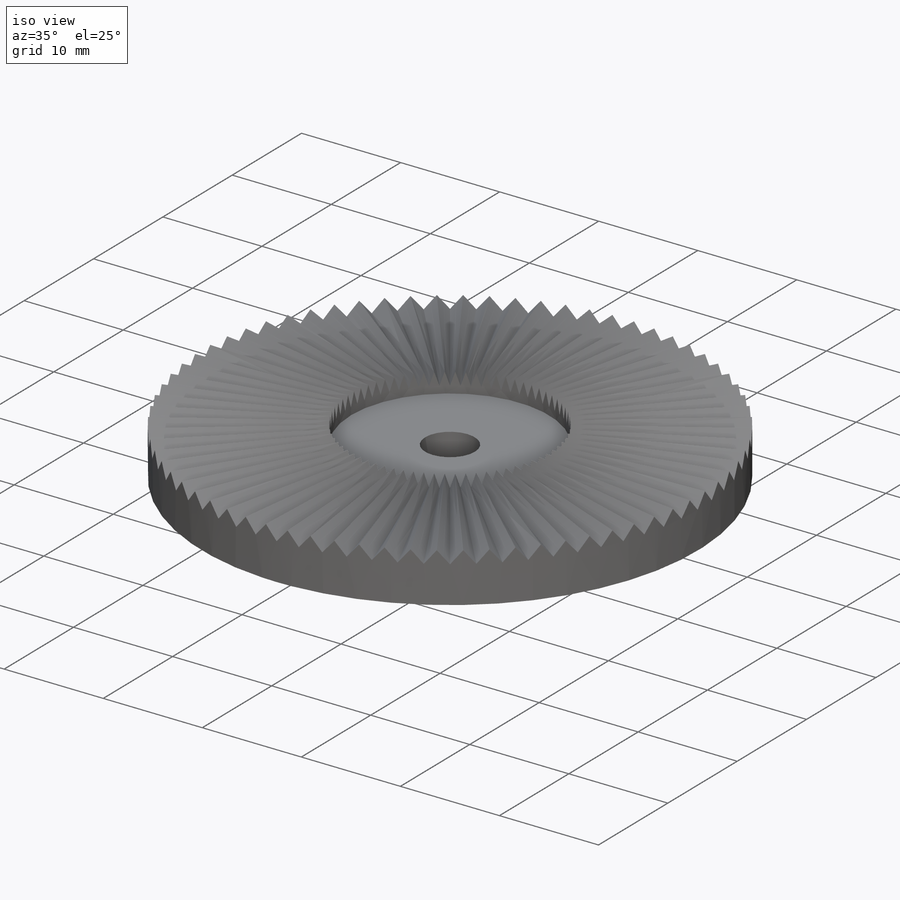
[diagram: iso view]
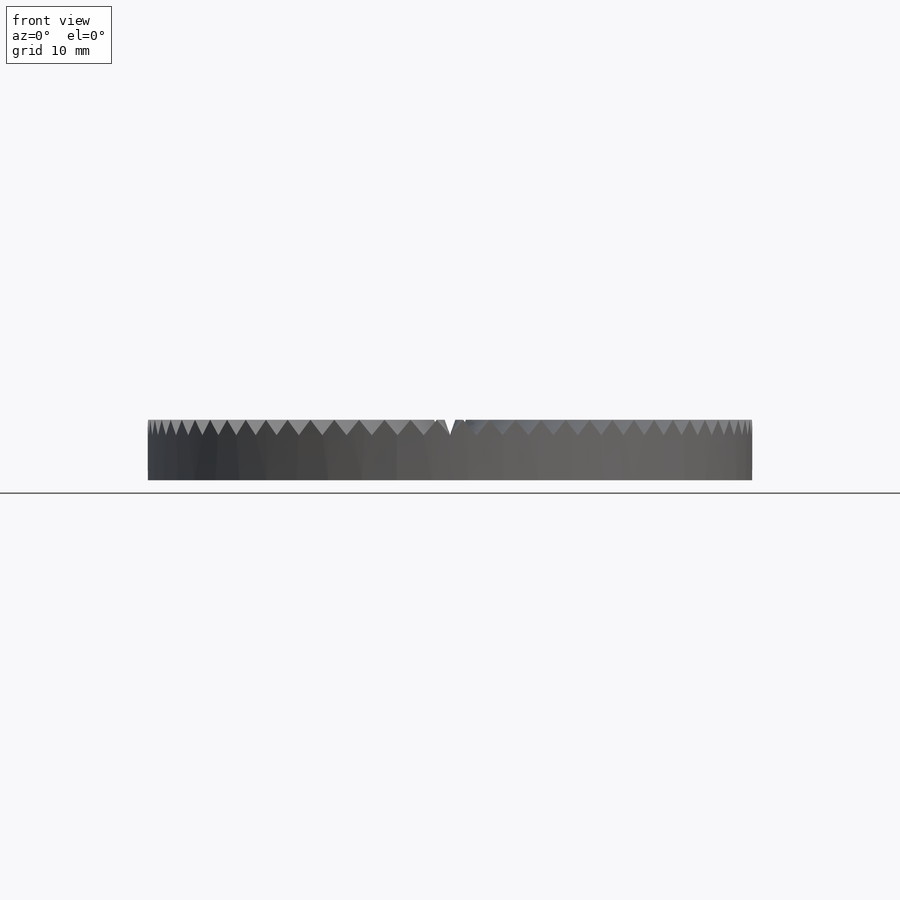
[diagram: front view]
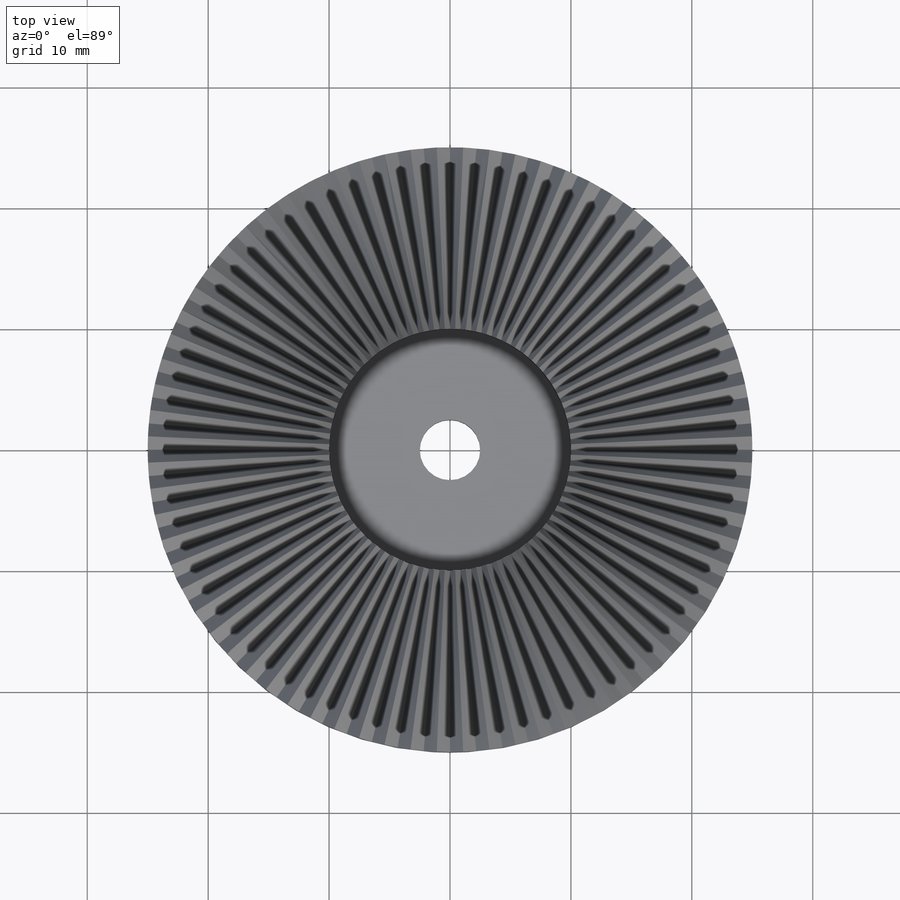
[diagram: top view]
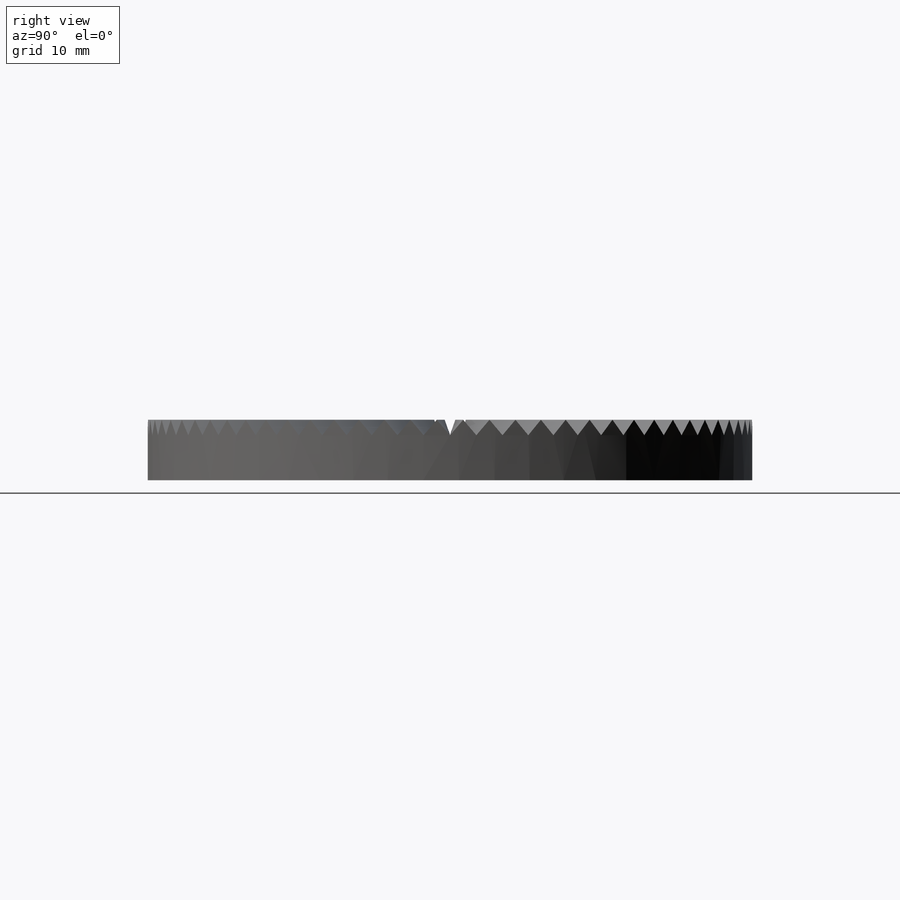
[diagram: right view]
SOLIDWORKS PART (.sldprt)
format: sldprt  version: not decoded by parser v0  size: 607,744 bytes
history: native  units: mm
features: sketch x8, plane x2, material x1, revolve x1, cut_extrude x1, pattern_circular x1 (+12 scaffold rows collapsed)
feature tree (26):
  scaffold x12  (default folders/planes/origin — collapsed)
  material  "Material <not specified>"
  sketch  "Sketch1"  dims[D1=2.5mm D2=30.0mm D3=5.0mm D4=10.0mm D5=2.0mm D6=2.0mm]
  revolve  "Revolve1"  Angle=360deg
  sketch  "Sketch2"  dims[D1=5.0mm]
  plane  "Plane1"
  sketch  "Sketch4"
  plane  "Plane2"
  sketch  "Sketch9"
  sketch  "Sketch10"
  sketch  "3DSketch7"
  sketch  "3DSketch9"
  sketch  "Sketch12"  dims[D1=~25.63538mm]
  cut_extrude  "Cut-Extrude1"  [1 undecoded]
  pattern_circular  "CirPattern5"  Count=72 Angle=360deg
decode coverage: 5 of 11 modeling features carry decoded parameters
note: ~ marks probable driven/reference dimensions
note: 1 parameter value undecoded
note: suppression state not decoded; provenance and decode notes live in map.json
